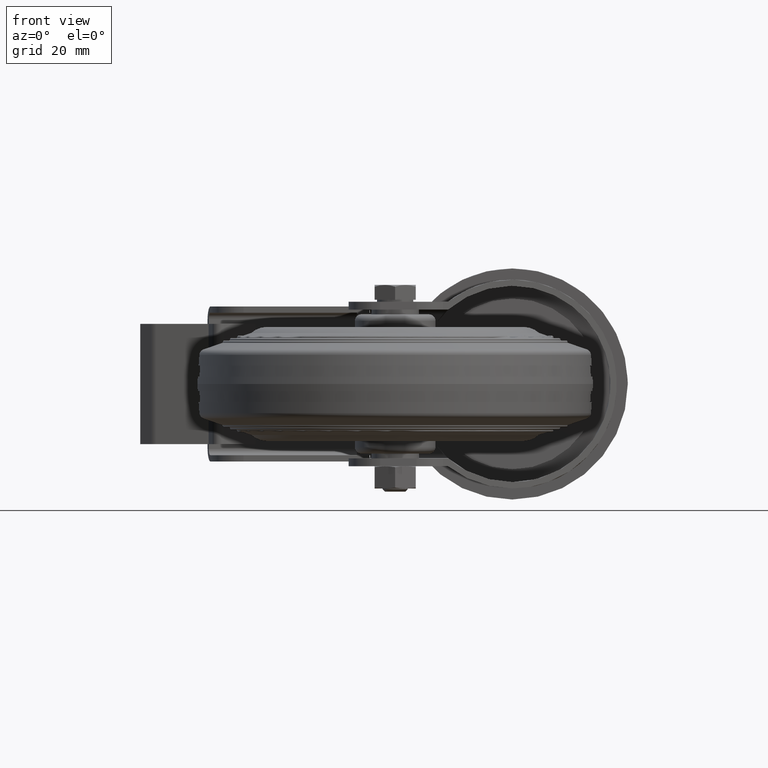
[diagram: clean part render]
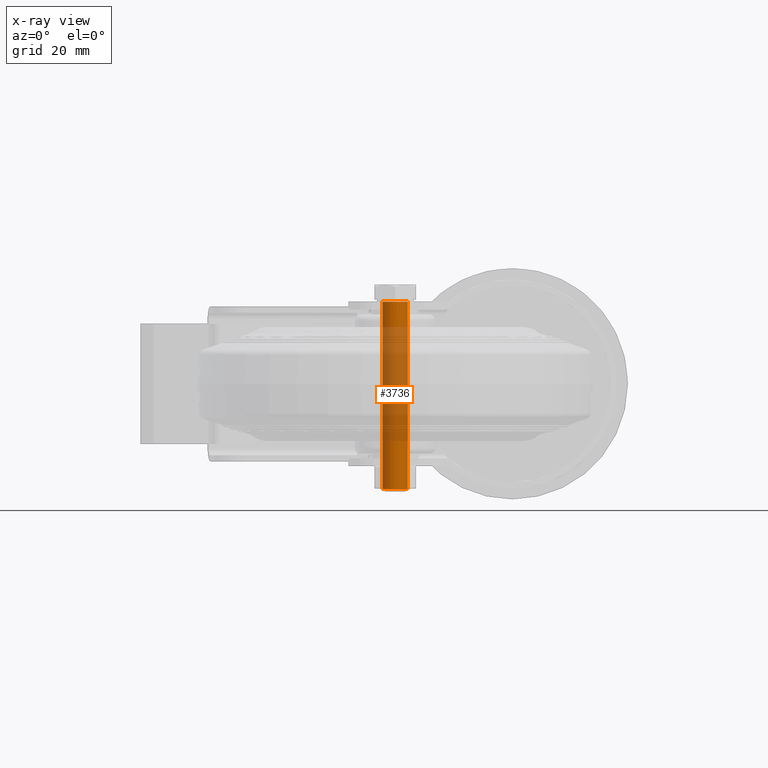
[diagram: x-ray — body ghosted, one internal face saturated and labeled with its STEP entity id]
A machine part, front view, then the same camera in x-ray: the body is ghosted and one INTERNAL B-rep face — a face not visible from any outside direction — is saturated and labeled: STEP entity #3736.
In plain terms, the highlighted cylindrical surface (bore or boss wall) has radius 4 mm, axis along (0, 0, -1).
Its self-contained STEP definition (entity closure, byte-faithful):
#315=CYLINDRICAL_SURFACE('',#4168,4.);
#401=CIRCLE('',#4167,4.);
#402=CIRCLE('',#4169,4.);
#403=CIRCLE('',#4170,4.);
#601=FACE_OUTER_BOUND('',#831,.T.);
#831=EDGE_LOOP('',(#2557,#2558,#2559,#2560,#2561));
#1100=LINE('',#5830,#1385);
#1385=VECTOR('',#4641,4.);
#1671=VERTEX_POINT('',#5823);
#1672=VERTEX_POINT('',#5826);
#1673=VERTEX_POINT('',#5827);
#2017=EDGE_CURVE('',#1671,#1671,#401,.T.);
#2018=EDGE_CURVE('',#1672,#1673,#402,.T.);
#2019=EDGE_CURVE('',#1673,#1672,#403,.T.);
#2020=EDGE_CURVE('',#1673,#1671,#1100,.T.);
#2557=ORIENTED_EDGE('',*,*,#2018,.F.);
#2558=ORIENTED_EDGE('',*,*,#2019,.F.);
#2559=ORIENTED_EDGE('',*,*,#2020,.T.);
#2560=ORIENTED_EDGE('',*,*,#2017,.T.);
#2561=ORIENTED_EDGE('',*,*,#2020,.F.);
#3736=ADVANCED_FACE('',(#601),#315,.T.);
#4167=AXIS2_PLACEMENT_3D('',#5824,#4633,#4634);
#4168=AXIS2_PLACEMENT_3D('',#5825,#4635,#4636);
#4169=AXIS2_PLACEMENT_3D('',#5828,#4637,#4638);
#4170=AXIS2_PLACEMENT_3D('',#5829,#4639,#4640);
#4633=DIRECTION('center_axis',(1.,0.,0.));
#4634=DIRECTION('ref_axis',(0.,0.,-1.));
#4635=DIRECTION('center_axis',(1.,0.,0.));
#4636=DIRECTION('ref_axis',(0.,0.,-1.));
#4637=DIRECTION('center_axis',(1.,0.,0.));
#4638=DIRECTION('ref_axis',(0.,0.,-1.));
#4639=DIRECTION('center_axis',(1.,0.,0.));
#4640=DIRECTION('ref_axis',(0.,0.,-1.));
#4641=DIRECTION('',(-1.,0.,0.));
#5823=CARTESIAN_POINT('',(0.,-4.89858719658941E-16,4.));
#5824=CARTESIAN_POINT('Origin',(0.,0.,0.));
#5825=CARTESIAN_POINT('Origin',(60.,0.,0.));
#5826=CARTESIAN_POINT('',(59.233,0.,-4.));
#5827=CARTESIAN_POINT('',(59.233,-4.89858719658941E-16,4.));
#5828=CARTESIAN_POINT('Origin',(59.233,0.,0.));
#5829=CARTESIAN_POINT('Origin',(59.233,0.,0.));
#5830=CARTESIAN_POINT('',(60.,-4.89858719658941E-16,4.));